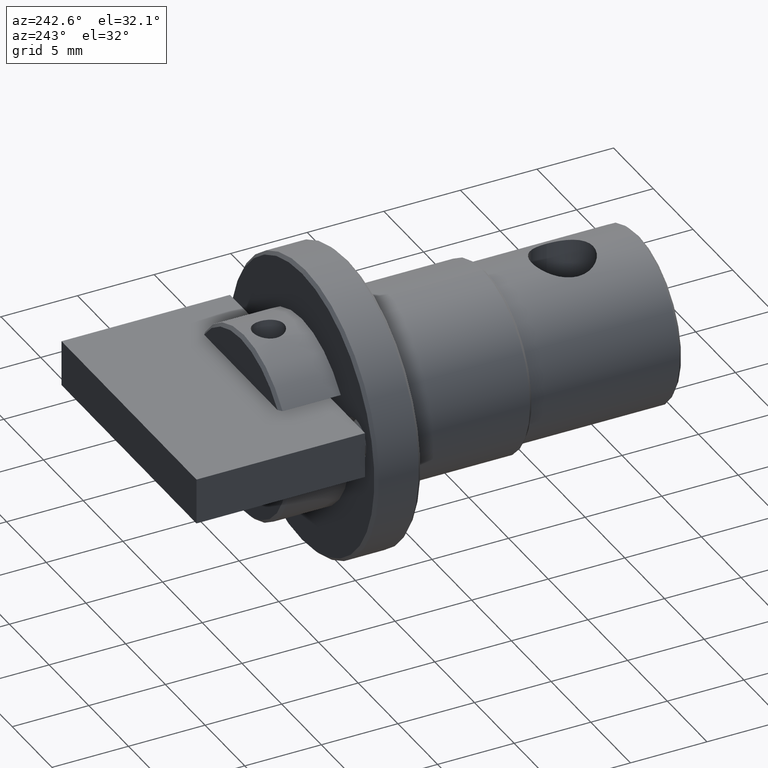
[diagram: clean part render]
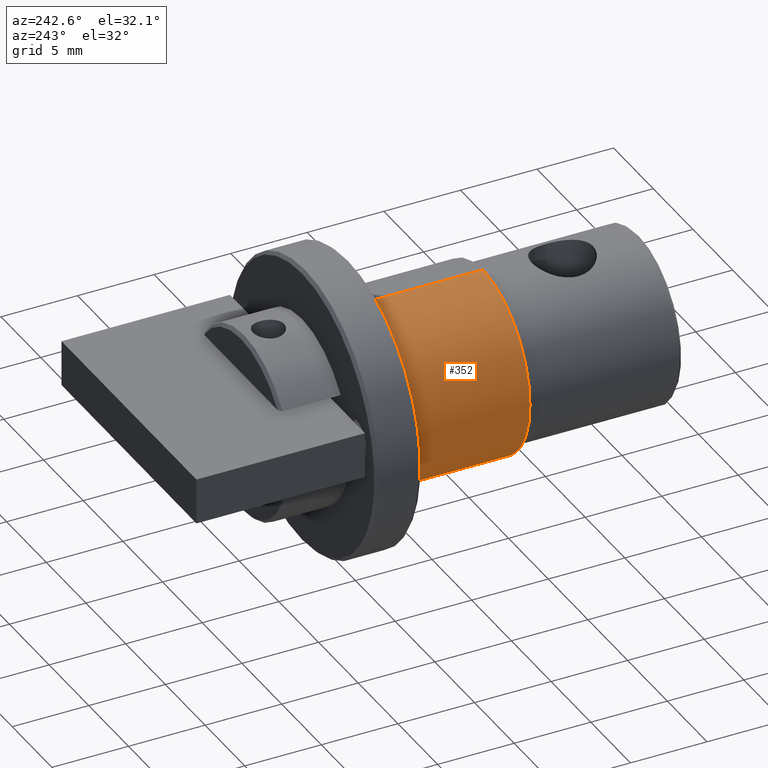
[diagram: same view with one face highlighted and labeled with its STEP entity id]
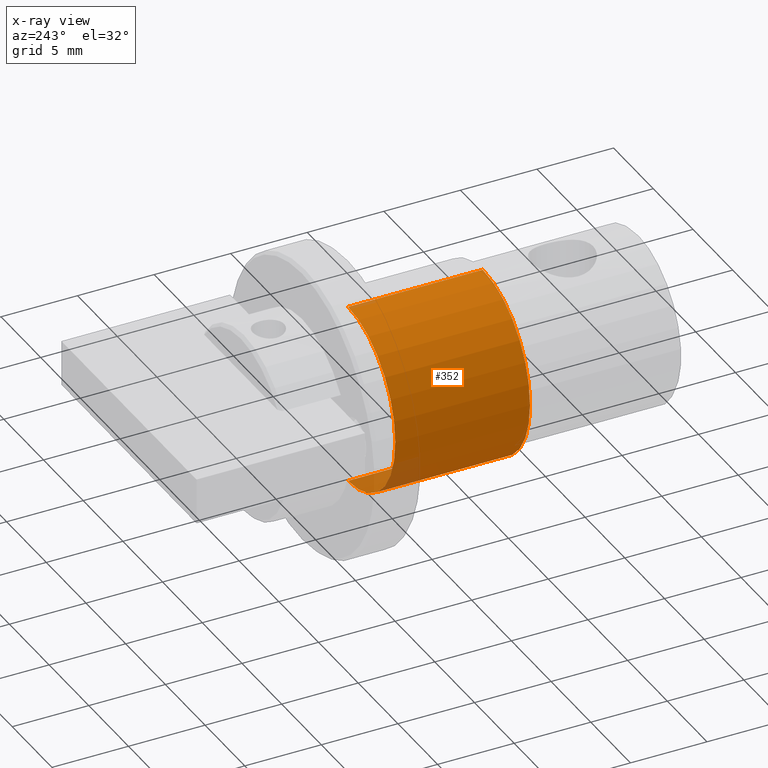
[diagram: x-ray of the same camera — body ghosted, the highlighted face saturated]
A machine part, auxiliary view. The second image highlights one B-rep face of the part: STEP entity #352.
The next image is the same camera in x-ray: the body ghosted, the highlighted face saturated — about 5% of this face is hidden behind the body in this view.
In plain terms, the highlighted cylindrical surface (partial cylindrical patch) has radius 5.95 mm, axis along (-0, 1, -0).
Its self-contained STEP definition (entity closure, byte-faithful):
#3 = VERTEX_POINT ( 'NONE', #437 ) ;
#13 = EDGE_CURVE ( 'NONE', #75, #3, #548, .T. ) ;
#19 = VERTEX_POINT ( 'NONE', #675 ) ;
#22 = EDGE_CURVE ( 'NONE', #72, #19, #669, .T. ) ;
#72 = VERTEX_POINT ( 'NONE', #710 ) ;
#75 = VERTEX_POINT ( 'NONE', #776 ) ;
#352 = ADVANCED_FACE ( 'NONE', ( #1999 ), #1956, .T. ) ;
#353 = EDGE_LOOP ( 'NONE', ( #354, #355, #357, #358 ) ) ;
#354 = ORIENTED_EDGE ( 'NONE', *, *, #22, .F. ) ;
#355 = ORIENTED_EDGE ( 'NONE', *, *, #356, .T. ) ;
#356 = EDGE_CURVE ( 'NONE', #72, #75, #1955, .T. ) ;
#357 = ORIENTED_EDGE ( 'NONE', *, *, #13, .T. ) ;
#358 = ORIENTED_EDGE ( 'NONE', *, *, #420, .T. ) ;
#420 = EDGE_CURVE ( 'NONE', #3, #19, #1623, .T. ) ;
#437 = CARTESIAN_POINT ( 'NONE',  ( -5.796632573378701600, 3.305878560888230800, 6.762838894319156900 ) ) ;
#546 = VECTOR ( 'NONE', #660, 1000.000000000000000 ) ;
#547 = CARTESIAN_POINT ( 'NONE',  ( -5.796632573378701600, -5.694121439111768300, 6.762838894319156900 ) ) ;
#548 = LINE ( 'NONE', #547, #546 ) ;
#660 = DIRECTION ( 'NONE',  ( -0.0000000000000000000, 1.000000000000000000, -0.0000000000000000000 ) ) ;
#666 = DIRECTION ( 'NONE',  ( -0.0000000000000000000, 1.000000000000000000, -0.0000000000000000000 ) ) ;
#667 = VECTOR ( 'NONE', #666, 1000.000000000000000 ) ;
#668 = CARTESIAN_POINT ( 'NONE',  ( -5.796632573378700700, -5.694121439111768300, -5.137161105680843500 ) ) ;
#669 = LINE ( 'NONE', #668, #667 ) ;
#675 = CARTESIAN_POINT ( 'NONE',  ( -5.796632573378700700, 3.305878560888230800, -5.137161105680843500 ) ) ;
#710 = CARTESIAN_POINT ( 'NONE',  ( -5.796632573378700700, -5.494121439111777000, -5.137161105680843500 ) ) ;
#776 = CARTESIAN_POINT ( 'NONE',  ( -5.796632573378701600, -5.494121439111777000, 6.762838894319156900 ) ) ;
#1619 = DIRECTION ( 'NONE',  ( 0.0000000000000000000, 0.0000000000000000000, 1.000000000000000000 ) ) ;
#1620 = DIRECTION ( 'NONE',  ( -0.0000000000000000000, -1.000000000000000000, -0.0000000000000000000 ) ) ;
#1621 = CARTESIAN_POINT ( 'NONE',  ( -5.796632573378701600, 3.305878560888230800, 0.8128388943191566800 ) ) ;
#1622 = AXIS2_PLACEMENT_3D ( 'NONE', #1621, #1620, #1619 ) ;
#1623 = CIRCLE ( 'NONE', #1622, 5.950000000000000200 ) ;
#1947 = DIRECTION ( 'NONE',  ( 0.0000000000000000000, 0.0000000000000000000, -1.000000000000000000 ) ) ;
#1948 = DIRECTION ( 'NONE',  ( 0.0000000000000000000, 1.000000000000000000, 0.0000000000000000000 ) ) ;
#1949 = CARTESIAN_POINT ( 'NONE',  ( -5.796632573378701600, -5.494121439111777000, 0.8128388943191566800 ) ) ;
#1950 = AXIS2_PLACEMENT_3D ( 'NONE', #1949, #1948, #1947 ) ;
#1951 = DIRECTION ( 'NONE',  ( 0.0000000000000000000, 0.0000000000000000000, 1.000000000000000000 ) ) ;
#1952 = DIRECTION ( 'NONE',  ( -0.0000000000000000000, 1.000000000000000000, -0.0000000000000000000 ) ) ;
#1953 = CARTESIAN_POINT ( 'NONE',  ( -5.796632573378701600, -5.694121439111768300, 0.8128388943191566800 ) ) ;
#1954 = AXIS2_PLACEMENT_3D ( 'NONE', #1953, #1952, #1951 ) ;
#1955 = CIRCLE ( 'NONE', #1950, 5.950000000000000200 ) ;
#1956 = CYLINDRICAL_SURFACE ( 'NONE', #1954, 5.950000000000000200 ) ;
#1999 = FACE_OUTER_BOUND ( 'NONE', #353, .T. ) ;